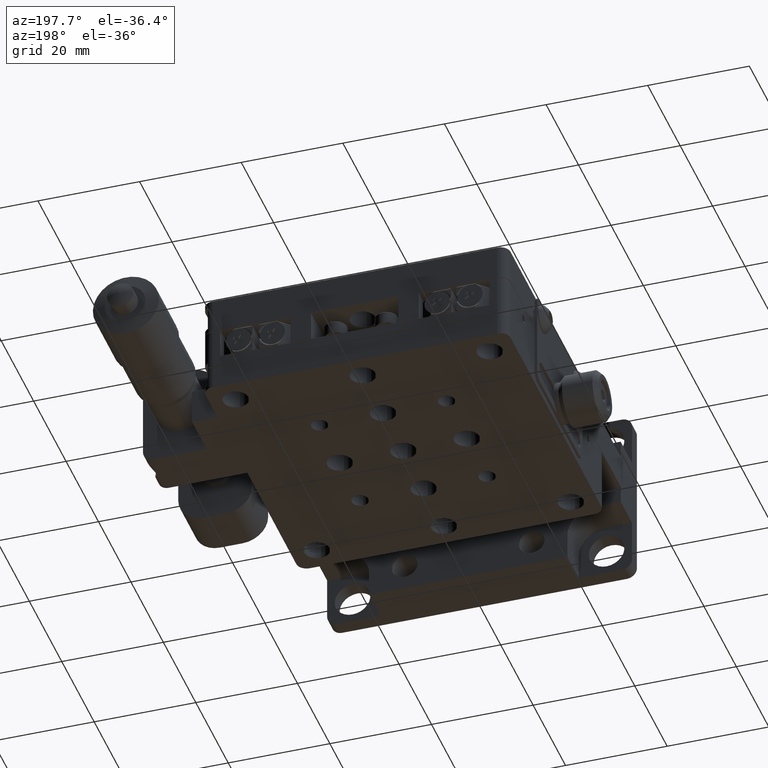
[diagram: clean part render]
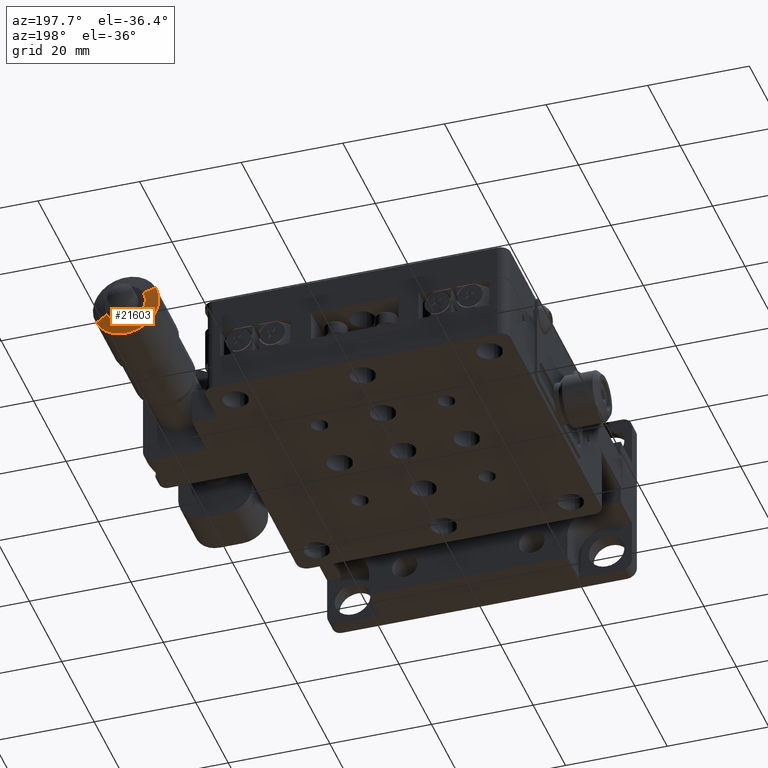
[diagram: same view with one face highlighted and labeled with its STEP entity id]
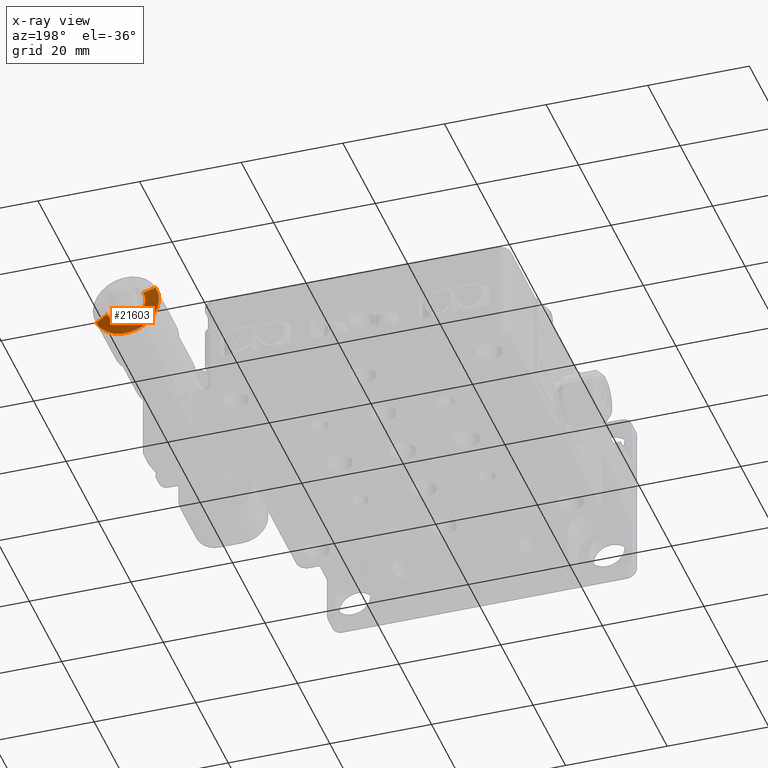
[diagram: x-ray of the same camera — body ghosted, the highlighted face saturated]
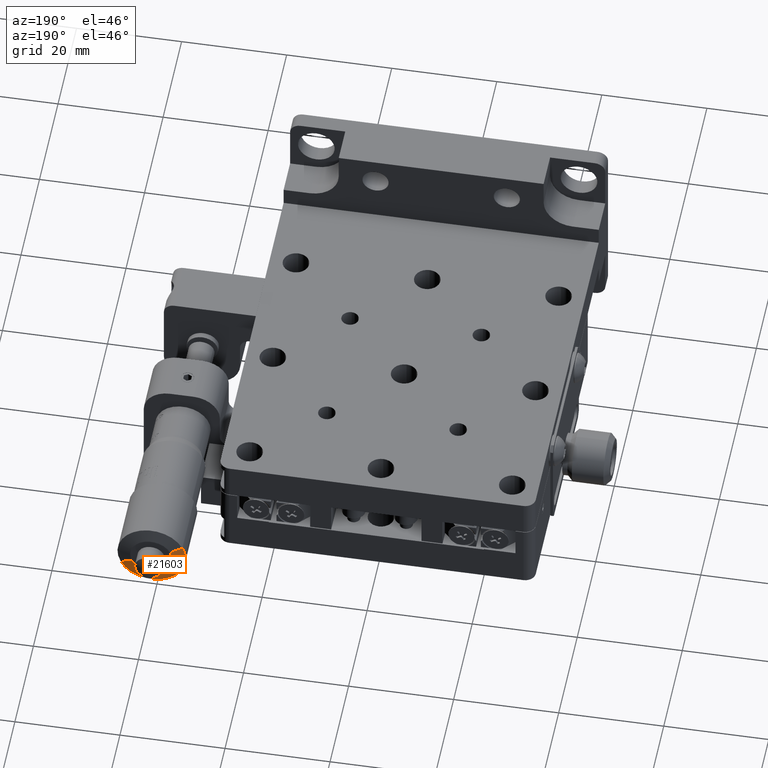
[diagram: same view with one face highlighted and labeled with its STEP entity id]
A machine part, auxiliary view. The second image highlights one B-rep face of the part: STEP entity #21603.
The next image is the same camera in x-ray: the body ghosted, the highlighted face saturated — about 0% of this face is hidden behind the body in this view.
A second angle (auxiliary view) of the same face is appended — the face is thin or edge-on in the first view.
In plain terms, the highlighted conical surface has half-angle 78.69 deg.
Its self-contained STEP definition (entity closure, byte-faithful):
#1614 = CARTESIAN_POINT ( 'NONE',  ( 43.60868653218276600, 86.29000660395620100, -7.525509058984026100 ) ) ;
#1637 = ORIENTED_EDGE ( 'NONE', *, *, #48758, .F. ) ;
#1829 = DIRECTION ( 'NONE',  ( 0.8846520695211187400, -0.1961161351381838800, -0.4230002097286279500 ) ) ;
#5790 = LINE ( 'NONE', #23752, #39527 ) ;
#7712 = AXIS2_PLACEMENT_3D ( 'NONE', #35712, #45513, #55076 ) ;
#9996 = DIRECTION ( 'NONE',  ( -0.8846520695211186300, -0.1961161351381840200, 0.4230002097286280600 ) ) ;
#11296 = EDGE_CURVE ( 'NONE', #48160, #21782, #36038, .T. ) ;
#12615 = CARTESIAN_POINT ( 'NONE',  ( 36.39131346781727700, 86.29000660395620100, -4.074490941127836900 ) ) ;
#17559 = CARTESIAN_POINT ( 'NONE',  ( 40.00000000000002100, 86.29000660395620100, -5.800000000055932000 ) ) ;
#20871 = DIRECTION ( 'NONE',  ( 1.101876641632671100E-016, -1.000000000000000000, 2.975472225001914800E-018 ) ) ;
#21603 = ADVANCED_FACE ( 'NONE', ( #27578 ), #58264, .T. ) ;
#21782 = VERTEX_POINT ( 'NONE', #12615 ) ;
#22368 = AXIS2_PLACEMENT_3D ( 'NONE', #39849, #20871, #53104 ) ;
#22540 = VERTEX_POINT ( 'NONE', #46042 ) ;
#23752 = CARTESIAN_POINT ( 'NONE',  ( 36.39131346781727700, 86.29000660395620100, -4.074490941127837800 ) ) ;
#27274 = LINE ( 'NONE', #1614, #38211 ) ;
#27578 = FACE_OUTER_BOUND ( 'NONE', #30990, .T. ) ;
#29030 = EDGE_CURVE ( 'NONE', #22540, #36807, #31266, .T. ) ;
#29613 = ORIENTED_EDGE ( 'NONE', *, *, #29030, .T. ) ;
#30990 = EDGE_LOOP ( 'NONE', ( #1637, #48090, #33962, #29613 ) ) ;
#31266 = CIRCLE ( 'NONE', #7712, 6.500000000000007100 ) ;
#33962 = ORIENTED_EDGE ( 'NONE', *, *, #37522, .T. ) ;
#35712 = CARTESIAN_POINT ( 'NONE',  ( 40.00000000000002100, 85.79000660395620100, -5.800000000055932000 ) ) ;
#36038 = CIRCLE ( 'NONE', #36481, 4.000000000000001800 ) ;
#36342 = DIRECTION ( 'NONE',  ( -0.9021716330456850400, 0.0000000000000000000, 0.4313772647320232000 ) ) ;
#36481 = AXIS2_PLACEMENT_3D ( 'NONE', #17559, #50236, #36342 ) ;
#36807 = VERTEX_POINT ( 'NONE', #52976 ) ;
#37522 = EDGE_CURVE ( 'NONE', #48160, #22540, #27274, .T. ) ;
#38211 = VECTOR ( 'NONE', #1829, 1000.000000000000100 ) ;
#39527 = VECTOR ( 'NONE', #9996, 1000.000000000000200 ) ;
#39849 = CARTESIAN_POINT ( 'NONE',  ( 40.00000000000002100, 86.29000660395620100, -5.800000000055932000 ) ) ;
#41618 = CARTESIAN_POINT ( 'NONE',  ( 43.60868653218276600, 86.29000660395620100, -7.525509058984025200 ) ) ;
#45513 = DIRECTION ( 'NONE',  ( -1.101876641632671100E-016, 1.000000000000000000, -2.975472225001914800E-018 ) ) ;
#46042 = CARTESIAN_POINT ( 'NONE',  ( 45.86411561479695100, 85.79000660395620100, -8.603952220814127500 ) ) ;
#48090 = ORIENTED_EDGE ( 'NONE', *, *, #11296, .F. ) ;
#48160 = VERTEX_POINT ( 'NONE', #41618 ) ;
#48758 = EDGE_CURVE ( 'NONE', #21782, #36807, #5790, .T. ) ;
#50236 = DIRECTION ( 'NONE',  ( -1.101876641632671100E-016, 1.000000000000000000, -2.975472225001914800E-018 ) ) ;
#52976 = CARTESIAN_POINT ( 'NONE',  ( 34.13588438520306300, 85.79000660395620100, -2.996047779297780400 ) ) ;
#53104 = DIRECTION ( 'NONE',  ( 0.9021716330456850400, 0.0000000000000000000, -0.4313772647320232000 ) ) ;
#55076 = DIRECTION ( 'NONE',  ( -0.9021716330456850400, 0.0000000000000000000, 0.4313772647320229200 ) ) ;
#58264 = CONICAL_SURFACE ( 'NONE', #22368, 4.000000000000001800, 1.373400766945015700 ) ;